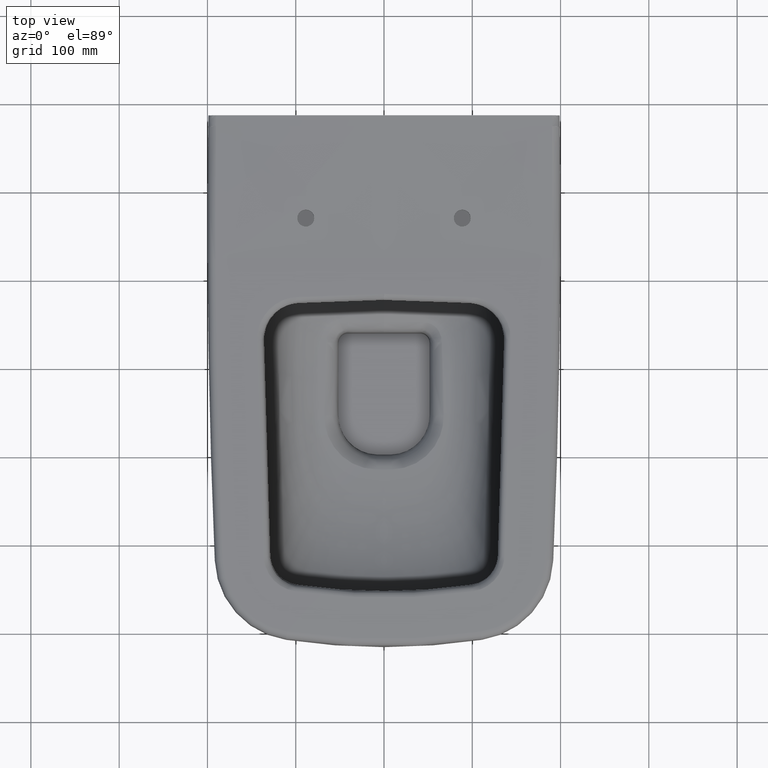
[diagram: clean part render]
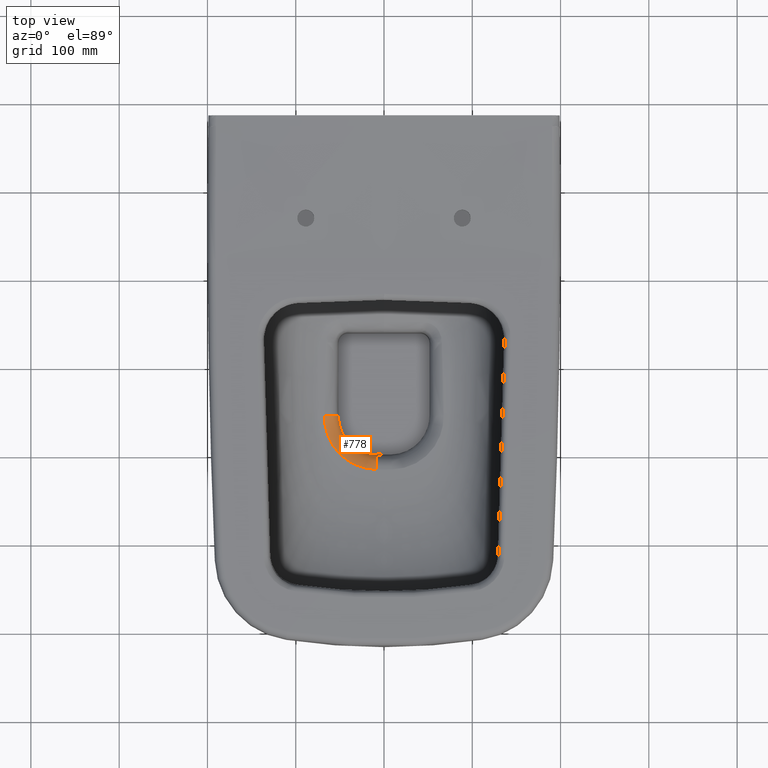
[diagram: same view with one face highlighted and labeled with its STEP entity id]
A machine part, top view. The second image highlights one B-rep face of the part: STEP entity #778.
In plain terms, the highlighted face is a freeform B-spline surface patch.
Its self-contained STEP definition (entity closure, byte-faithful):
#149=(
BOUNDED_SURFACE()
B_SPLINE_SURFACE(3,2,((#28956,#28957,#28958),(#28959,#28960,#28961),(#28962,
#28963,#28964),(#28965,#28966,#28967),(#28968,#28969,#28970),(#28971,#28972,
#28973),(#28974,#28975,#28976),(#28977,#28978,#28979),(#28980,#28981,#28982),
(#28983,#28984,#28985),(#28986,#28987,#28988),(#28989,#28990,#28991),(#28992,
#28993,#28994),(#28995,#28996,#28997),(#28998,#28999,#29000),(#29001,#29002,
#29003),(#29004,#29005,#29006),(#29007,#29008,#29009),(#29010,#29011,#29012),
(#29013,#29014,#29015),(#29016,#29017,#29018),(#29019,#29020,#29021),(#29022,
#29023,#29024),(#29025,#29026,#29027)),.UNSPECIFIED.,.F.,.F.,.F.)
B_SPLINE_SURFACE_WITH_KNOTS((4,2,2,2,2,2,2,2,2,2,2,4),(3,3),(0.,0.125,0.1875,
0.25,0.375,0.4375,0.5,0.625,0.6875,0.75,0.875,1.),(0.,1.),.UNSPECIFIED.)
GEOMETRIC_REPRESENTATION_ITEM()
RATIONAL_B_SPLINE_SURFACE(((1.,0.777128168614423,1.),(1.,0.776791729914752,
1.),(1.,0.776067511437106,1.),(1.,0.774641558124106,1.),(1.,0.774109530157514,
1.),(1.,0.772919056959151,1.),(1.,0.772225299661524,1.),(1.,0.77030928735083,
1.),(1.,0.769155338258361,1.),(1.,0.767818728491653,1.),(1.,0.767438999738852,
1.),(1.,0.766870758110817,1.),(1.,0.766737508081345,1.),(1.,0.766203954757586,
1.),(1.,0.765946219393174,1.),(1.,0.765726023194838,1.),(1.,0.765677346614801,
1.),(1.,0.765628145976549,1.),(1.,0.765627109635292,1.),(1.,0.765681246156881,
1.),(1.,0.765851960150599,1.),(1.,0.765953675192241,1.),(1.,0.765431344492477,
1.),(1.,0.764492706156456,1.)))
REPRESENTATION_ITEM('')
SURFACE()
);
#296=FACE_OUTER_BOUND('',#1084,.T.);
#611=(
BOUNDED_CURVE()
B_SPLINE_CURVE(2,(#28953,#28954,#28955),.UNSPECIFIED.,.F.,.F.)
B_SPLINE_CURVE_WITH_KNOTS((3,3),(0.,1.),.UNSPECIFIED.)
CURVE()
GEOMETRIC_REPRESENTATION_ITEM()
RATIONAL_B_SPLINE_CURVE((1.,0.764607229303602,1.))
REPRESENTATION_ITEM('')
);
#778=ADVANCED_FACE('',(#296),#149,.T.);
#1084=EDGE_LOOP('',(#1559,#1560,#1561,#1562));
#1559=ORIENTED_EDGE('',*,*,#3115,.F.);
#1560=ORIENTED_EDGE('',*,*,#3220,.F.);
#1561=ORIENTED_EDGE('',*,*,#3137,.F.);
#1562=ORIENTED_EDGE('',*,*,#3211,.T.);
#2674=VERTEX_POINT('',#6995);
#2680=VERTEX_POINT('',#7093);
#2699=VERTEX_POINT('',#15128);
#2700=VERTEX_POINT('',#15196);
#3115=EDGE_CURVE('',#2674,#2680,#3750,.T.);
#3137=EDGE_CURVE('',#2699,#2700,#3768,.T.);
#3211=EDGE_CURVE('',#2699,#2680,#3822,.T.);
#3220=EDGE_CURVE('',#2700,#2674,#611,.T.);
#3750=B_SPLINE_CURVE_WITH_KNOTS('',3,(#7128,#7129,#7130,#7131,#7132,#7133,
#7134,#7135,#7136,#7137,#7138,#7139,#7140,#7141,#7142,#7143,#7144,#7145,
#7146,#7147,#7148,#7149,#7150,#7151,#7152,#7153,#7154,#7155,#7156,#7157,
#7158),.UNSPECIFIED.,.F.,.F.,(4,2,2,2,2,2,2,2,2,1,2,2,2,2,2,4),(0.,0.125000000000001,
0.187500000000003,0.218750000000004,0.234375000000005,0.250000000000005,
0.374999999999995,0.43749999999999,0.468749999999987,0.484374999999985,
0.492187499999986,0.499999999999986,0.624999999999988,0.68749999999999,
0.749999999999992,1.),.UNSPECIFIED.);
#3768=B_SPLINE_CURVE_WITH_KNOTS('',3,(#15129,#15130,#15131,#15132,#15133,
#15134,#15135,#15136,#15137,#15138,#15139,#15140,#15141,#15142,#15143,#15144,
#15145,#15146,#15147,#15148,#15149,#15150,#15151,#15152,#15153,#15154,#15155,
#15156,#15157,#15158,#15159,#15160,#15161,#15162,#15163,#15164,#15165,#15166,
#15167,#15168,#15169,#15170,#15171,#15172,#15173,#15174,#15175,#15176,#15177,
#15178,#15179,#15180,#15181,#15182,#15183,#15184,#15185,#15186,#15187,#15188,
#15189,#15190,#15191,#15192,#15193,#15194,#15195),.UNSPECIFIED.,.F.,.F.,
(4,2,2,2,2,1,2,2,2,2,2,1,2,2,2,2,2,2,2,2,2,2,2,2,2,2,2,2,2,1,2,2,2,2,4),
(0.,0.0625000000000147,0.093750000000022,0.109375000000026,0.117187500000027,
0.121093750000028,0.123046875000029,0.125000000000029,0.187500000000041,
0.218750000000047,0.234375000000051,0.242187500000052,0.246093750000052,
0.250000000000053,0.312500000000054,0.320312500000054,0.328125000000054,
0.343750000000054,0.375000000000055,0.390625000000054,0.406250000000054,
0.437500000000053,0.468750000000052,0.484375000000051,0.492187500000051,
0.500000000000051,0.625000000000035,0.687500000000027,0.718750000000022,
0.73437500000002,0.742187500000019,0.750000000000018,0.875000000000008,
0.937500000000004,1.),.UNSPECIFIED.);
#3822=B_SPLINE_CURVE_WITH_KNOTS('',3,(#28782,#28783,#28784,#28785,#28786,
#28787,#28788,#28789,#28790,#28791),.UNSPECIFIED.,.F.,.F.,(4,2,2,2,4),(0.,
0.25,0.5,0.75,1.),.UNSPECIFIED.);
#6995=CARTESIAN_POINT('',(-51.8482519820441,-356.017543240987,-189.176304667755));
#7093=CARTESIAN_POINT('',(-8.33998494287386,-400.893638902423,-188.135052995681));
#7128=CARTESIAN_POINT('',(-51.8482520965735,-356.017543181696,-189.17630234587));
#7129=CARTESIAN_POINT('',(-51.850676848222,-358.174058273795,-189.121354061892));
#7130=CARTESIAN_POINT('',(-51.7027939517157,-360.67463099775,-189.083626092991));
#7131=CARTESIAN_POINT('',(-50.9843355489082,-364.929065488932,-189.039308041128));
#7132=CARTESIAN_POINT('',(-50.660934017952,-366.430125715922,-189.026389695396));
#7133=CARTESIAN_POINT('',(-50.0078990547294,-368.790114371624,-189.005728312923));
#7134=CARTESIAN_POINT('',(-49.7621872421551,-369.594714016997,-188.998607119839));
#7135=CARTESIAN_POINT('',(-49.3460845961466,-370.825181786409,-188.98686855761));
#7136=CARTESIAN_POINT('',(-49.1994606173134,-371.239255513278,-188.982778113312));
#7137=CARTESIAN_POINT('',(-48.889455257,-372.074553150834,-188.97410645165));
#7138=CARTESIAN_POINT('',(-48.7068604543439,-372.543127837689,-188.968978495382));
#7139=CARTESIAN_POINT('',(-47.3298885636739,-375.936667651497,-188.929794254602));
#7140=CARTESIAN_POINT('',(-45.8352625180272,-378.670837725624,-188.894072047959));
#7141=CARTESIAN_POINT('',(-43.4182968268256,-382.272427376811,-188.838546084997));
#7142=CARTESIAN_POINT('',(-42.5835828210489,-383.391011248038,-188.819905189117));
#7143=CARTESIAN_POINT('',(-41.3150146786011,-384.946883985369,-188.793057763738));
#7144=CARTESIAN_POINT('',(-40.889382079503,-385.445237894119,-188.784302013941));
#7145=CARTESIAN_POINT('',(-40.2498609279155,-386.162980013634,-188.771680172273));
#7146=CARTESIAN_POINT('',(-39.9298288306413,-386.514408552566,-188.765497700411));
#7147=CARTESIAN_POINT('',(-39.6099365121511,-386.854827738775,-188.759553473695));
#7148=CARTESIAN_POINT('',(-39.3967644349835,-387.079346905641,-188.755648895978));
#7149=CARTESIAN_POINT('',(-39.3130164658892,-387.1668771392,-188.754130637561));
#7150=CARTESIAN_POINT('',(-37.1155829719313,-389.433967991925,-188.715093297276));
#7151=CARTESIAN_POINT('',(-34.8647320995431,-391.3295685504,-188.670697152471));
#7152=CARTESIAN_POINT('',(-31.3402247805773,-393.77308031687,-188.592227219896));
#7153=CARTESIAN_POINT('',(-30.1407848818322,-394.521496137939,-188.564174369637));
#7154=CARTESIAN_POINT('',(-27.7134576874041,-395.885418719811,-188.505094852231));
#7155=CARTESIAN_POINT('',(-26.2391185670546,-396.625871944363,-188.468391914218));
#7156=CARTESIAN_POINT('',(-19.1790065560791,-399.690625371912,-188.298072122675));
#7157=CARTESIAN_POINT('',(-13.4800714940612,-400.763083306916,-188.169145543714));
#7158=CARTESIAN_POINT('',(-8.34031064007314,-400.893602285322,-188.135072958833));
#15128=CARTESIAN_POINT('',(-8.76134674841972,-417.461245149654,-172.683742001395));
#15129=CARTESIAN_POINT('',(-8.76134674841969,-417.461245149655,-172.683742001395));
#15130=CARTESIAN_POINT('',(-9.70886253813853,-417.438959625822,-172.684531771841));
#15131=CARTESIAN_POINT('',(-11.1668248484956,-417.389082640655,-172.686970247179));
#15132=CARTESIAN_POINT('',(-14.1041298577639,-417.116884175444,-172.695579386144));
#15133=CARTESIAN_POINT('',(-15.2079793773646,-416.99080060115,-172.699328635324));
#15134=CARTESIAN_POINT('',(-17.0440427035222,-416.715887043175,-172.706420383376));
#15135=CARTESIAN_POINT('',(-17.6860727229996,-416.610461041537,-172.70899668936));
#15136=CARTESIAN_POINT('',(-18.6928129749659,-416.427721917329,-172.713153208908));
#15137=CARTESIAN_POINT('',(-19.0356715291538,-416.362676397569,-172.714588690254));
#15138=CARTESIAN_POINT('',(-19.5606760617704,-416.258320248566,-172.716817513638));
#15139=CARTESIAN_POINT('',(-19.8258572197154,-416.204446524685,-172.717950885046));
#15140=CARTESIAN_POINT('',(-20.095015665906,-416.147921322682,-172.719113021729));
#15141=CARTESIAN_POINT('',(-20.2753336387956,-416.109636403104,-172.719894208043));
#15142=CARTESIAN_POINT('',(-20.3965928488963,-416.083541427311,-172.720421738168));
#15143=CARTESIAN_POINT('',(-22.3889628459715,-415.651299344533,-172.729111202165));
#15144=CARTESIAN_POINT('',(-24.298506876205,-415.138857909876,-172.738072169985));
#15145=CARTESIAN_POINT('',(-27.1167641211632,-414.246106296413,-172.752230158146));
#15146=CARTESIAN_POINT('',(-28.0489501881877,-413.93066684878,-172.757068989774));
#15147=CARTESIAN_POINT('',(-29.4332907804398,-413.423303125022,-172.764470732365));
#15148=CARTESIAN_POINT('',(-29.8921531141307,-413.246718052425,-172.766961892452));
#15149=CARTESIAN_POINT('',(-30.5754793587622,-412.966876185092,-172.770730452256));
#15150=CARTESIAN_POINT('',(-30.9159187328101,-412.823420904636,-172.772622790492));
#15151=CARTESIAN_POINT('',(-31.25438631951,-412.674733860797,-172.774526848633));
#15152=CARTESIAN_POINT('',(-31.4795781257158,-412.574454310932,-172.775798784622));
#15153=CARTESIAN_POINT('',(-31.623419268114,-412.509341718062,-172.776615240209));
#15154=CARTESIAN_POINT('',(-32.9946950394019,-411.882121188686,-172.784423439485));
#15155=CARTESIAN_POINT('',(-34.7287205337966,-411.109829529939,-172.788682739485));
#15156=CARTESIAN_POINT('',(-37.0648442041174,-409.834089813141,-172.790199704678));
#15157=CARTESIAN_POINT('',(-37.3295830261672,-409.686576320797,-172.790322391022));
#15158=CARTESIAN_POINT('',(-37.8686621636596,-409.379218222505,-172.79047585191));
#15159=CARTESIAN_POINT('',(-38.0509617901117,-409.272972668436,-172.79048237075));
#15160=CARTESIAN_POINT('',(-38.6887633593151,-408.897904251781,-172.790361940469));
#15161=CARTESIAN_POINT('',(-39.110383040644,-408.642836748711,-172.790070561188));
#15162=CARTESIAN_POINT('',(-40.3632399209823,-407.863028747857,-172.788560316636));
#15163=CARTESIAN_POINT('',(-41.1823189458788,-407.323511868708,-172.786705582824));
#15164=CARTESIAN_POINT('',(-42.3831225471239,-406.488293221746,-172.782636294496));
#15165=CARTESIAN_POINT('',(-42.7787572731961,-406.205571306772,-172.781065266389));
#15166=CARTESIAN_POINT('',(-43.560105358111,-405.63210203937,-172.777490491762));
#15167=CARTESIAN_POINT('',(-43.8649336533957,-405.403069337722,-172.775868352074));
#15168=CARTESIAN_POINT('',(-44.9037815155117,-404.60984296456,-172.769648848296));
#15169=CARTESIAN_POINT('',(-45.6239080977608,-404.038548029454,-172.764363042348));
#15170=CARTESIAN_POINT('',(-47.0991643429926,-402.799771801565,-172.751449725808));
#15171=CARTESIAN_POINT('',(-47.8543942554052,-402.132177808375,-172.743823133784));
#15172=CARTESIAN_POINT('',(-48.997739815084,-401.051481322395,-172.730535660907));
#15173=CARTESIAN_POINT('',(-49.3800109740183,-400.678071205577,-172.725797960854));
#15174=CARTESIAN_POINT('',(-49.9555149756886,-400.097534369372,-172.71821251183));
#15175=CARTESIAN_POINT('',(-50.1483749954395,-399.900634445665,-172.715604119351));
#15176=CARTESIAN_POINT('',(-50.5375319328315,-399.499885718353,-172.710224299923));
#15177=CARTESIAN_POINT('',(-50.7699384222417,-399.258047512733,-172.706930262689));
#15178=CARTESIAN_POINT('',(-53.5166545014402,-396.377058153234,-172.667283510952));
#15179=CARTESIAN_POINT('',(-55.9182523579321,-393.362313988095,-172.62769213049));
#15180=CARTESIAN_POINT('',(-59.0830227805962,-388.389089134421,-172.560424227582));
#15181=CARTESIAN_POINT('',(-60.0665171606321,-386.658070698911,-172.536679546889));
#15182=CARTESIAN_POINT('',(-61.4268359862791,-383.96539554855,-172.498198376664));
#15183=CARTESIAN_POINT('',(-61.8611103549303,-383.051812962895,-172.484894460805));
#15184=CARTESIAN_POINT('',(-62.4828892183207,-381.659095361481,-172.464099502774));
#15185=CARTESIAN_POINT('',(-62.7863744703478,-380.957149815041,-172.45349181505));
#15186=CARTESIAN_POINT('',(-63.0785989690219,-380.247138189523,-172.442543954846));
#15187=CARTESIAN_POINT('',(-63.2708957400955,-379.772039438633,-172.435166985917));
#15188=CARTESIAN_POINT('',(-63.3793108830442,-379.499037934372,-172.430894852344));
#15189=CARTESIAN_POINT('',(-64.7409037829072,-376.018859935084,-172.376089733088));
#15190=CARTESIAN_POINT('',(-65.8427758106815,-372.277548538474,-172.317801244287));
#15191=CARTESIAN_POINT('',(-66.9410484993657,-366.006781199358,-172.217805458624));
#15192=CARTESIAN_POINT('',(-67.216041219762,-363.740113077631,-172.181831822074));
#15193=CARTESIAN_POINT('',(-67.5152869676724,-359.690846308312,-172.131538940616));
#15194=CARTESIAN_POINT('',(-67.5790946267531,-357.820611190002,-172.113636406171));
#15195=CARTESIAN_POINT('',(-67.5611269142549,-356.12646810632,-172.10547565841));
#15196=CARTESIAN_POINT('',(-67.5611269206274,-356.126468106256,-172.105475657599));
#28782=CARTESIAN_POINT('',(-8.76153628784943,-417.461188083523,-172.683719834647));
#28783=CARTESIAN_POINT('',(-8.71511685366205,-415.57813709182,-172.81503849869));
#28784=CARTESIAN_POINT('',(-8.66614335982458,-413.605226288073,-173.257857688141));
#28785=CARTESIAN_POINT('',(-8.57121745964403,-409.810566395502,-174.862011053531));
#28786=CARTESIAN_POINT('',(-8.52543501227355,-407.995735110932,-176.025342185212));
#28787=CARTESIAN_POINT('',(-8.44626293461248,-404.88807909588,-178.923591746617));
#28788=CARTESIAN_POINT('',(-8.41302169408542,-403.601001033633,-180.653150768438));
#28789=CARTESIAN_POINT('',(-8.36394685500936,-401.735824087292,-184.327450472567));
#28790=CARTESIAN_POINT('',(-8.34808300148765,-401.156217693649,-186.265148465368));
#28791=CARTESIAN_POINT('',(-8.34016914622238,-400.893540435019,-188.13496756991));
#28953=CARTESIAN_POINT('',(-67.5611307461749,-356.127387676884,-172.10547518376));
#28954=CARTESIAN_POINT('',(-52.5100433060585,-356.111459269453,-174.018791340244));
#28955=CARTESIAN_POINT('',(-51.8482531215394,-356.017291811924,-189.176278569024));
#28956=CARTESIAN_POINT('',(-7.91662761927949,-400.902351646413,-188.132581622326));
#28957=CARTESIAN_POINT('',(-7.95447812134054,-402.932392834448,-173.697723667529));
#28958=CARTESIAN_POINT('',(-8.17875733330771,-417.472284134891,-172.683384539243));
#28959=CARTESIAN_POINT('',(-10.8682195979814,-400.854964407625,-188.147813331688));
#28960=CARTESIAN_POINT('',(-11.08890210821,-402.872936872946,-173.696946844232));
#28961=CARTESIAN_POINT('',(-12.2790597618437,-417.412908791814,-172.68499881373));
#28962=CARTESIAN_POINT('',(-13.7506248080685,-400.51607217364,-188.192147780684));
#28963=CARTESIAN_POINT('',(-14.1082499693107,-402.495061429196,-173.703214673365));
#28964=CARTESIAN_POINT('',(-16.2510916841383,-416.961699098488,-172.702498252668));
#28965=CARTESIAN_POINT('',(-17.9990739465612,-399.59171586748,-188.269707922874));
#28966=CARTESIAN_POINT('',(-18.5461053750158,-401.490821917332,-173.708233058646));
#28967=CARTESIAN_POINT('',(-22.1077340017586,-415.721730739473,-172.727815074916));
#28968=CARTESIAN_POINT('',(-19.401637456297,-399.213825130311,-188.298439232062));
#28969=CARTESIAN_POINT('',(-20.0099760418337,-401.081479315384,-173.709863005514));
#28970=CARTESIAN_POINT('',(-24.0412081441014,-415.213612415081,-172.736782522377));
#28971=CARTESIAN_POINT('',(-22.1789547242837,-398.31580080913,-188.362601816266));
#28972=CARTESIAN_POINT('',(-22.9089204744781,-400.110203954523,-173.713397703651));
#28973=CARTESIAN_POINT('',(-27.8780178597831,-414.001645914809,-172.756649437037));
#28974=CARTESIAN_POINT('',(-23.5597826027667,-397.792225217866,-188.399843679591));
#28975=CARTESIAN_POINT('',(-24.3397068476052,-399.547636044736,-173.71536057012));
#28976=CARTESIAN_POINT('',(-29.7775021723341,-413.298634639889,-172.769021576433));
#28977=CARTESIAN_POINT('',(-27.5774140472195,-396.039052028626,-188.502180666589));
#28978=CARTESIAN_POINT('',(-28.4586270345541,-397.687379550054,-173.718932490075));
#28979=CARTESIAN_POINT('',(-35.2552645243558,-410.949882764259,-172.791927843023));
#28980=CARTESIAN_POINT('',(-30.1114555555536,-394.623825559531,-188.56497667929));
#28981=CARTESIAN_POINT('',(-31.0490279806782,-396.189847957424,-173.721030137282));
#28982=CARTESIAN_POINT('',(-38.7172416108079,-409.033201678661,-172.795146112295));
#28983=CARTESIAN_POINT('',(-33.6991486110733,-392.13792711954,-188.646778781948));
#28984=CARTESIAN_POINT('',(-34.6866783557281,-393.582626954925,-173.729830944339));
#28985=CARTESIAN_POINT('',(-43.5865619944134,-405.653094910148,-172.778543686694));
#28986=CARTESIAN_POINT('',(-34.8604495148122,-391.247344009046,-188.671896444346));
#28987=CARTESIAN_POINT('',(-35.8603649558061,-392.65084927711,-173.733634309549));
#28988=CARTESIAN_POINT('',(-45.1583502163938,-404.43974530838,-172.769315240713));
#28989=CARTESIAN_POINT('',(-37.1039024830975,-389.344359411583,-188.716393597399));
#28990=CARTESIAN_POINT('',(-38.1197291394816,-390.666247675478,-173.744497265962));
#28991=CARTESIAN_POINT('',(-48.1820038218031,-401.843079915826,-172.742480953103));
#28992=CARTESIAN_POINT('',(-38.1700919601505,-388.345933454834,-188.733832337841));
#28993=CARTESIAN_POINT('',(-39.1856928935532,-389.632068982563,-173.752361111162));
#28994=CARTESIAN_POINT('',(-49.606660935053,-400.481569860395,-172.723742955913));
#28995=CARTESIAN_POINT('',(-41.2067165965282,-385.213344066402,-188.787760744082));
#28996=CARTESIAN_POINT('',(-42.2711644081277,-386.33187702079,-173.770312754248));
#28997=CARTESIAN_POINT('',(-53.7283368549449,-396.148087297559,-172.66418353472));
#28998=CARTESIAN_POINT('',(-43.0166301552729,-382.943041946155,-188.827440300344));
#28999=CARTESIAN_POINT('',(-44.0833020314275,-383.960838998128,-173.790768832137));
#29000=CARTESIAN_POINT('',(-56.1559803293504,-393.02288939901,-172.624220564057));
#29001=CARTESIAN_POINT('',(-45.4049556710301,-379.261780755653,-188.88291045251));
#29002=CARTESIAN_POINT('',(-46.4533445684689,-380.13600647229,-173.825594856326));
#29003=CARTESIAN_POINT('',(-59.331458779871,-387.969473849426,-172.554515354586));
#29004=CARTESIAN_POINT('',(-46.1474043021965,-377.984451282298,-188.900952788212));
#29005=CARTESIAN_POINT('',(-47.1858127629735,-378.811749412235,-173.837966825669));
#29006=CARTESIAN_POINT('',(-60.3132322483498,-386.218075238038,-172.529732619071));
#29007=CARTESIAN_POINT('',(-47.4898739154473,-375.391381136118,-188.935176192696));
#29008=CARTESIAN_POINT('',(-48.5019476212414,-376.129528944191,-173.863409773394));
#29009=CARTESIAN_POINT('',(-62.0775671151713,-382.667808190653,-172.478245937448));
#29010=CARTESIAN_POINT('',(-48.0943857940696,-374.06948810858,-188.951457125738));
#29011=CARTESIAN_POINT('',(-49.0900019109908,-374.765320849471,-173.876536932296));
#29012=CARTESIAN_POINT('',(-62.8661222158157,-380.860497204388,-172.451429407314));
#29013=CARTESIAN_POINT('',(-49.7115236659324,-370.029282116191,-188.997774294805));
#29014=CARTESIAN_POINT('',(-50.6496232038167,-370.605125588643,-173.916499314213));
#29015=CARTESIAN_POINT('',(-64.9578462476365,-375.345687775393,-172.367786815963));
#29016=CARTESIAN_POINT('',(-50.5311462664599,-367.229398573027,-189.024784441308));
#29017=CARTESIAN_POINT('',(-51.4186236562206,-367.742670074135,-173.946332963836));
#29018=CARTESIAN_POINT('',(-65.986887812599,-371.544975301315,-172.307614128495));
#29019=CARTESIAN_POINT('',(-51.6189070010821,-361.45546532501,-189.076444148309));
#29020=CARTESIAN_POINT('',(-52.3985384476833,-361.820104571535,-173.99257126234));
#29021=CARTESIAN_POINT('',(-67.3139714023838,-363.685344532625,-172.180924095348));
#29022=CARTESIAN_POINT('',(-51.875589489456,-358.545568126944,-189.116462467727));
#29023=CARTESIAN_POINT('',(-52.5991675826408,-358.761820337553,-173.993187589872));
#29024=CARTESIAN_POINT('',(-67.6321896425736,-359.640836922765,-172.119106977615));
#29025=CARTESIAN_POINT('',(-51.8458456323103,-355.593113043261,-189.186765430903));
#29026=CARTESIAN_POINT('',(-52.4969069596275,-355.667880898645,-174.023034404742));
#29027=CARTESIAN_POINT('',(-67.5523499730722,-355.545207971956,-172.102931089851));